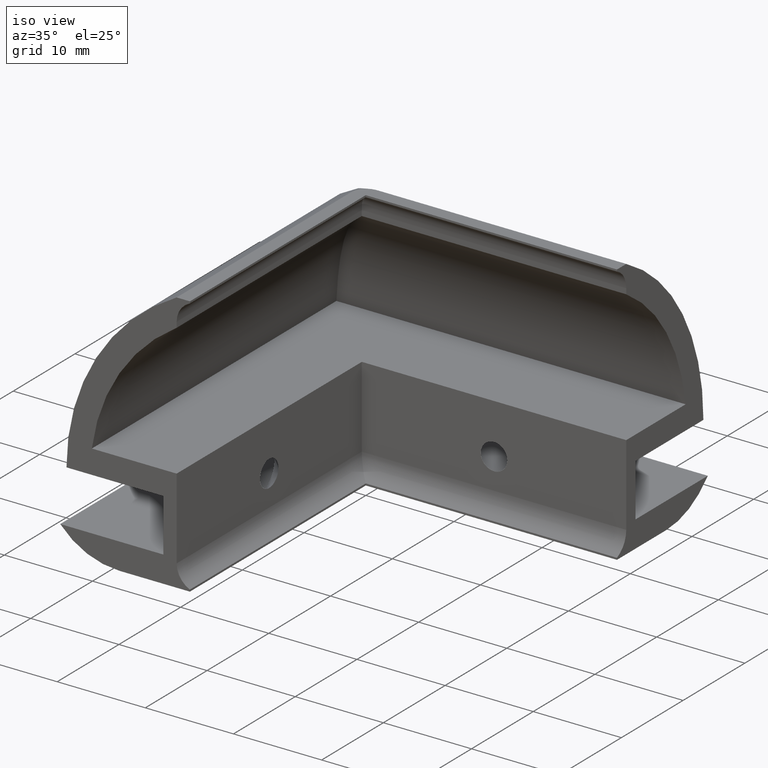
[diagram: clean part render]
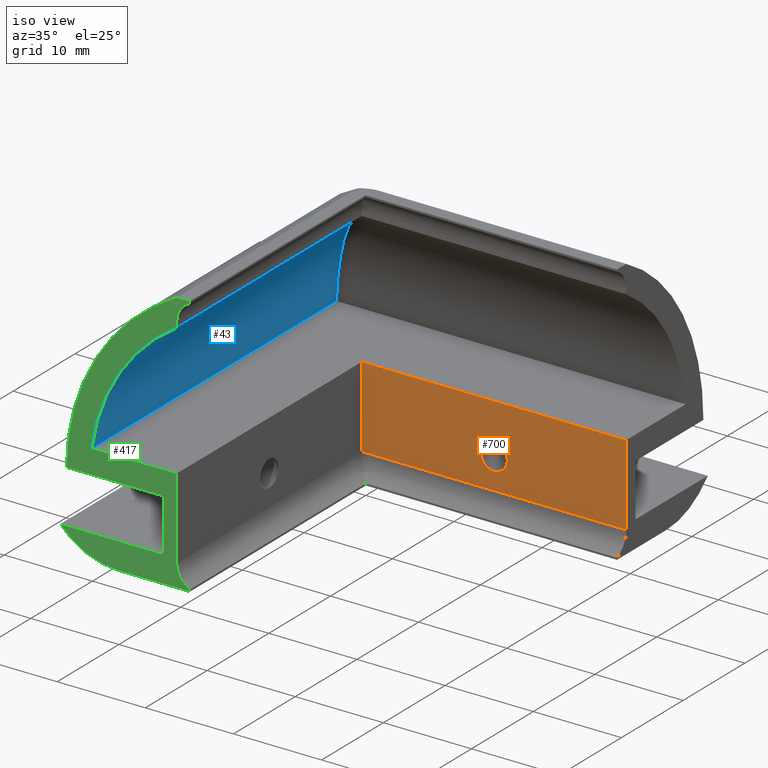
[diagram: same view with three faces highlighted in distinct colors, each labeled with its STEP entity id]
A machine part, iso view with three faces highlighted in distinct colors.
Their STEP definitions:

[orange] entity #700 — the highlighted planar face has unit normal (0, -1, 0).
#272=CARTESIAN_POINT('',(-1.500000000000000,1.500000000000096,2.499999999999999));
#273=VERTEX_POINT('',#272);
#313=CARTESIAN_POINT('',(-1.500000000000000,1.500000000000096,11.700000000000159));
#314=VERTEX_POINT('',#313);
#315=CARTESIAN_POINT('',(-1.500000000000000,1.500000000000096,11.700000000000159));
#316=DIRECTION('',(0.0,0.0,-1.0));
#317=VECTOR('',#316,9.200000000000159);
#318=LINE('',#315,#317);
#319=EDGE_CURVE('',#314,#273,#318,.T.);
#637=CARTESIAN_POINT('',(28.500006930995369,1.500000000000147,2.499999999999999));
#638=VERTEX_POINT('',#637);
#646=CARTESIAN_POINT('',(28.500006930995369,1.500000000000147,2.499999999999999));
#647=DIRECTION('',(-1.0,0.0,0.0));
#648=VECTOR('',#647,30.000006930995433);
#649=LINE('',#646,#648);
#650=EDGE_CURVE('',#638,#273,#649,.T.);
#657=CARTESIAN_POINT('',(28.500006930995369,1.500000000000147,2.499999999999999));
#658=DIRECTION('',(0.0,-1.0,0.0));
#659=DIRECTION('',(0.0,0.0,1.0));
#660=AXIS2_PLACEMENT_3D('',#657,#658,#659);
#661=PLANE('',#660);
#662=ORIENTED_EDGE('',*,*,#319,.T.);
#663=ORIENTED_EDGE('',*,*,#650,.F.);
#664=CARTESIAN_POINT('',(28.500006930995369,1.500000000000147,11.700000000000159));
#665=VERTEX_POINT('',#664);
#666=CARTESIAN_POINT('',(28.500006930995369,1.500000000000147,2.500000000000000));
#667=DIRECTION('',(0.0,0.0,1.0));
#668=VECTOR('',#667,9.200000000000159);
#669=LINE('',#666,#668);
#670=EDGE_CURVE('',#638,#665,#669,.T.);
#671=ORIENTED_EDGE('',*,*,#670,.T.);
#672=CARTESIAN_POINT('',(28.500006930995369,1.500000000000147,11.700000000000159));
#673=DIRECTION('',(-1.0,0.0,0.0));
#674=VECTOR('',#673,30.000006930995433);
#675=LINE('',#672,#674);
#676=EDGE_CURVE('',#665,#314,#675,.T.);
#677=ORIENTED_EDGE('',*,*,#676,.T.);
#678=EDGE_LOOP('',(#662,#663,#671,#677));
#679=FACE_OUTER_BOUND('',#678,.T.);
#680=CARTESIAN_POINT('',(15.000000000000114,1.500000000000146,5.999999999999999));
#681=VERTEX_POINT('',#680);
#682=CARTESIAN_POINT('',(11.999999999999886,1.500000000000146,5.999999999999999));
#683=VERTEX_POINT('',#682);
#684=CARTESIAN_POINT('',(13.500000000000000,1.500000000000146,5.999999999999999));
#685=DIRECTION('',(0.0,-1.0,6.123234E-017));
#686=DIRECTION('',(-1.0,0.0,0.0));
#687=AXIS2_PLACEMENT_3D('',#684,#685,#686);
#688=CIRCLE('',#687,1.500000000000114);
#689=EDGE_CURVE('',#681,#683,#688,.T.);
#690=ORIENTED_EDGE('',*,*,#689,.F.);
#691=CARTESIAN_POINT('',(13.500000000000000,1.500000000000146,5.999999999999999));
#692=DIRECTION('',(0.0,-1.0,6.123234E-017));
#693=DIRECTION('',(-1.0,0.0,0.0));
#694=AXIS2_PLACEMENT_3D('',#691,#692,#693);
#695=CIRCLE('',#694,1.500000000000114);
#696=EDGE_CURVE('',#683,#681,#695,.T.);
#697=ORIENTED_EDGE('',*,*,#696,.F.);
#698=EDGE_LOOP('',(#690,#697));
#699=FACE_BOUND('',#698,.T.);
#700=ADVANCED_FACE('',(#679,#699),#661,.T.);

[blue] entity #43 — the highlighted cylindrical surface (partial cylindrical patch) has radius 20.8 mm, axis along (-0, 1, -0).
#2=CARTESIAN_POINT('',(9.499999999999886,16.000000000000146,9.0));
#3=DIRECTION('',(-3.081488E-033,1.0,-6.123234E-017));
#4=DIRECTION('',(-0.991539188846185,7.948429E-018,0.129807692307700));
#5=AXIS2_PLACEMENT_3D('',#2,#3,#4);
#6=CYLINDRICAL_SURFACE('',#5,20.800000000000036);
#7=CARTESIAN_POINT('',(-11.124015128000792,11.124015128000785,11.700000000000159));
#8=VERTEX_POINT('',#7);
#9=CARTESIAN_POINT('',(-11.124015128000792,-28.499999999999858,11.700000000000159));
#10=VERTEX_POINT('',#9);
#11=CARTESIAN_POINT('',(-11.124015128000792,11.124015128000785,11.700000000000159));
#12=DIRECTION('',(0.0,-1.0,0.0));
#13=VECTOR('',#12,39.624015128000636);
#14=LINE('',#11,#13);
#15=EDGE_CURVE('',#8,#10,#14,.T.);
#16=ORIENTED_EDGE('',*,*,#15,.F.);
#17=CARTESIAN_POINT('',(-1.500000000000000,1.500000000000098,26.653328298085967));
#18=VERTEX_POINT('',#17);
#19=CARTESIAN_POINT('',(9.499999999999886,-9.499999999999831,9.0));
#20=DIRECTION('',(0.707106781186548,0.707106781186547,-4.329780E-017));
#21=DIRECTION('',(0.707106781186547,-0.707106781186548,4.329780E-017));
#22=AXIS2_PLACEMENT_3D('',#19,#20,#21);
#23=ELLIPSE('',#22,29.415642097360440,20.800000000000036);
#24=EDGE_CURVE('',#8,#18,#23,.T.);
#25=ORIENTED_EDGE('',*,*,#24,.T.);
#26=CARTESIAN_POINT('',(-1.500000000000000,-28.499999999999858,26.653328298085970));
#27=VERTEX_POINT('',#26);
#28=CARTESIAN_POINT('',(-1.500000000000000,1.500000000000100,26.653328298085967));
#29=DIRECTION('',(0.0,-1.0,0.0));
#30=VECTOR('',#29,29.999999999999950);
#31=LINE('',#28,#30);
#32=EDGE_CURVE('',#18,#27,#31,.T.);
#33=ORIENTED_EDGE('',*,*,#32,.T.);
#34=CARTESIAN_POINT('',(9.499999999999886,-28.499999999999858,8.999999999999998));
#35=DIRECTION('',(-3.081488E-033,1.0,-6.123234E-017));
#36=DIRECTION('',(-0.528846153846148,5.196897E-017,0.848717706638748));
#37=AXIS2_PLACEMENT_3D('',#34,#35,#36);
#38=CIRCLE('',#37,20.800000000000036);
#39=EDGE_CURVE('',#10,#27,#38,.T.);
#40=ORIENTED_EDGE('',*,*,#39,.F.);
#41=EDGE_LOOP('',(#16,#25,#33,#40));
#42=FACE_OUTER_BOUND('',#41,.T.);
#43=ADVANCED_FACE('',(#42),#6,.F.);

[green] entity #417 — the highlighted planar face has unit normal (0, -1, 0).
#9=CARTESIAN_POINT('',(-11.124015128000792,-28.499999999999858,11.700000000000159));
#10=VERTEX_POINT('',#9);
#26=CARTESIAN_POINT('',(-1.500000000000000,-28.499999999999858,26.653328298085970));
#27=VERTEX_POINT('',#26);
#34=CARTESIAN_POINT('',(9.499999999999886,-28.499999999999858,8.999999999999998));
#35=DIRECTION('',(-3.081488E-033,1.0,-6.123234E-017));
#36=DIRECTION('',(-0.528846153846148,5.196897E-017,0.848717706638748));
#37=AXIS2_PLACEMENT_3D('',#34,#35,#36);
#38=CIRCLE('',#37,20.800000000000036);
#39=EDGE_CURVE('',#10,#27,#38,.T.);
#58=CARTESIAN_POINT('',(-1.500000000000000,-28.499999999999858,27.266559657392921));
#59=VERTEX_POINT('',#58);
#66=CARTESIAN_POINT('',(-1.500000000000000,-28.499999999999858,26.653328298086002));
#67=DIRECTION('',(0.0,0.0,1.0));
#68=VECTOR('',#67,0.613231359306916);
#69=LINE('',#66,#68);
#70=EDGE_CURVE('',#27,#59,#69,.T.);
#90=CARTESIAN_POINT('',(2.000888E-011,-28.499999999999858,29.557847504760165));
#91=VERTEX_POINT('',#90);
#98=CARTESIAN_POINT('',(0.999999999817646,-28.499999999999858,27.266559657392921));
#99=DIRECTION('',(0.0,1.0,-6.123234E-017));
#100=DIRECTION('',(-1.0,0.0,0.0));
#101=AXIS2_PLACEMENT_3D('',#98,#99,#100);
#102=CIRCLE('',#101,2.499999999817598);
#103=EDGE_CURVE('',#59,#91,#102,.T.);
#122=CARTESIAN_POINT('',(2.000888E-011,-28.499999999999858,29.766559657295151));
#123=VERTEX_POINT('',#122);
#130=CARTESIAN_POINT('',(2.000888E-011,-28.499999999999858,29.557847504760165));
#131=DIRECTION('',(0.0,0.0,1.0));
#132=VECTOR('',#131,0.208712152534986);
#133=LINE('',#130,#132);
#134=EDGE_CURVE('',#91,#123,#133,.T.);
#194=CARTESIAN_POINT('',(-3.000000000000114,-28.499999999999858,9.0));
#195=VERTEX_POINT('',#194);
#209=CARTESIAN_POINT('',(-3.000000000000114,-28.499999999999858,3.000000000000001));
#210=VERTEX_POINT('',#209);
#217=CARTESIAN_POINT('',(-3.000000000000114,-28.499999999999858,9.0));
#218=DIRECTION('',(0.0,0.0,-1.0));
#219=VECTOR('',#218,6.0);
#220=LINE('',#217,#219);
#221=EDGE_CURVE('',#195,#210,#220,.T.);
#233=CARTESIAN_POINT('',(0.0,-28.499999999999858,8.881784E-016));
#234=VERTEX_POINT('',#233);
#249=CARTESIAN_POINT('',(0.0,-28.499999999999858,0.208712152522026));
#250=VERTEX_POINT('',#249);
#257=CARTESIAN_POINT('',(0.0,-28.499999999999858,8.881784E-016));
#258=DIRECTION('',(0.0,0.0,1.0));
#259=VECTOR('',#258,0.208712152522080);
#260=LINE('',#257,#259);
#261=EDGE_CURVE('',#234,#250,#260,.T.);
#281=CARTESIAN_POINT('',(-1.500000000000000,-28.499999999999858,2.500000000000001));
#282=VERTEX_POINT('',#281);
#289=CARTESIAN_POINT('',(1.0,-28.499999999999858,2.500000000000001));
#290=DIRECTION('',(0.0,1.0,-6.123234E-017));
#291=DIRECTION('',(-1.0,0.0,0.0));
#292=AXIS2_PLACEMENT_3D('',#289,#290,#291);
#293=CIRCLE('',#292,2.500000000000000);
#294=EDGE_CURVE('',#250,#282,#293,.T.);
#304=CARTESIAN_POINT('',(-1.500000000000000,-28.499999999999858,11.700000000000159));
#305=VERTEX_POINT('',#304);
#306=CARTESIAN_POINT('',(-1.500000000000000,-28.499999999999858,2.500000000000000));
#307=DIRECTION('',(0.0,0.0,1.0));
#308=VECTOR('',#307,9.200000000000159);
#309=LINE('',#306,#308);
#310=EDGE_CURVE('',#282,#305,#309,.T.);
#350=CARTESIAN_POINT('',(-16.179144325787092,-28.499999999999858,-2.976775965765341));
#351=DIRECTION('',(0.0,-1.0,0.0));
#352=DIRECTION('',(1.0,0.0,0.0));
#353=AXIS2_PLACEMENT_3D('',#350,#351,#352);
#354=PLANE('',#353);
#355=CARTESIAN_POINT('',(-1.500000000000000,-28.499999999999858,11.700000000000159));
#356=DIRECTION('',(-1.0,0.0,0.0));
#357=VECTOR('',#356,9.624015128000789);
#358=LINE('',#355,#357);
#359=EDGE_CURVE('',#305,#10,#358,.T.);
#360=ORIENTED_EDGE('',*,*,#359,.T.);
#361=ORIENTED_EDGE('',*,*,#39,.T.);
#362=ORIENTED_EDGE('',*,*,#70,.T.);
#363=ORIENTED_EDGE('',*,*,#103,.T.);
#364=ORIENTED_EDGE('',*,*,#134,.T.);
#365=CARTESIAN_POINT('',(-1.500000000000000,-28.499999999999858,29.766559657295151));
#366=VERTEX_POINT('',#365);
#367=CARTESIAN_POINT('',(2.000888E-011,-28.499999999999858,29.766559657295151));
#368=DIRECTION('',(-1.0,0.0,0.0));
#369=VECTOR('',#368,1.500000000020009);
#370=LINE('',#367,#369);
#371=EDGE_CURVE('',#123,#366,#370,.T.);
#372=ORIENTED_EDGE('',*,*,#371,.T.);
#373=CARTESIAN_POINT('',(-14.0,-28.499999999999858,9.0));
#374=VERTEX_POINT('',#373);
#375=CARTESIAN_POINT('',(9.499999999999888,-28.499999999999858,9.000000000000002));
#376=DIRECTION('',(3.081488E-033,-1.0,6.123234E-017));
#377=DIRECTION('',(-0.468085106382976,5.411000E-017,0.883683389672137));
#378=AXIS2_PLACEMENT_3D('',#375,#376,#377);
#379=CIRCLE('',#378,23.499999999999911);
#380=EDGE_CURVE('',#366,#374,#379,.T.);
#381=ORIENTED_EDGE('',*,*,#380,.T.);
#382=CARTESIAN_POINT('',(-14.0,-28.499999999999858,9.0));
#383=DIRECTION('',(1.0,0.0,0.0));
#384=VECTOR('',#383,10.999999999999886);
#385=LINE('',#382,#384);
#386=EDGE_CURVE('',#374,#195,#385,.T.);
#387=ORIENTED_EDGE('',*,*,#386,.T.);
#388=ORIENTED_EDGE('',*,*,#221,.T.);
#389=CARTESIAN_POINT('',(-14.708203932499259,-28.499999999999858,3.000000000000001));
#390=VERTEX_POINT('',#389);
#391=CARTESIAN_POINT('',(-3.000000000000114,-28.499999999999858,3.000000000000001));
#392=DIRECTION('',(-1.0,0.0,0.0));
#393=VECTOR('',#392,11.708203932499160);
#394=LINE('',#391,#393);
#395=EDGE_CURVE('',#210,#390,#394,.T.);
#396=ORIENTED_EDGE('',*,*,#395,.T.);
#397=CARTESIAN_POINT('',(-8.0,-28.499999999999858,8.881784E-016));
#398=VERTEX_POINT('',#397);
#399=CARTESIAN_POINT('',(-8.0,-28.499999999999858,9.0));
#400=DIRECTION('',(6.162976E-033,-1.0,6.123234E-017));
#401=DIRECTION('',(-0.745355992499924,-4.082156E-017,-0.666666666666673));
#402=AXIS2_PLACEMENT_3D('',#399,#400,#401);
#403=CIRCLE('',#402,8.999999999999929);
#404=EDGE_CURVE('',#390,#398,#403,.T.);
#405=ORIENTED_EDGE('',*,*,#404,.T.);
#406=CARTESIAN_POINT('',(-8.0,-28.499999999999858,8.881784E-016));
#407=DIRECTION('',(1.0,0.0,0.0));
#408=VECTOR('',#407,8.0);
#409=LINE('',#406,#408);
#410=EDGE_CURVE('',#398,#234,#409,.T.);
#411=ORIENTED_EDGE('',*,*,#410,.T.);
#412=ORIENTED_EDGE('',*,*,#261,.T.);
#413=ORIENTED_EDGE('',*,*,#294,.T.);
#414=ORIENTED_EDGE('',*,*,#310,.T.);
#415=EDGE_LOOP('',(#360,#361,#362,#363,#364,#372,#381,#387,#388,#396,#405,#411,#412,#413,#414));
#416=FACE_OUTER_BOUND('',#415,.T.);
#417=ADVANCED_FACE('',(#416),#354,.T.);